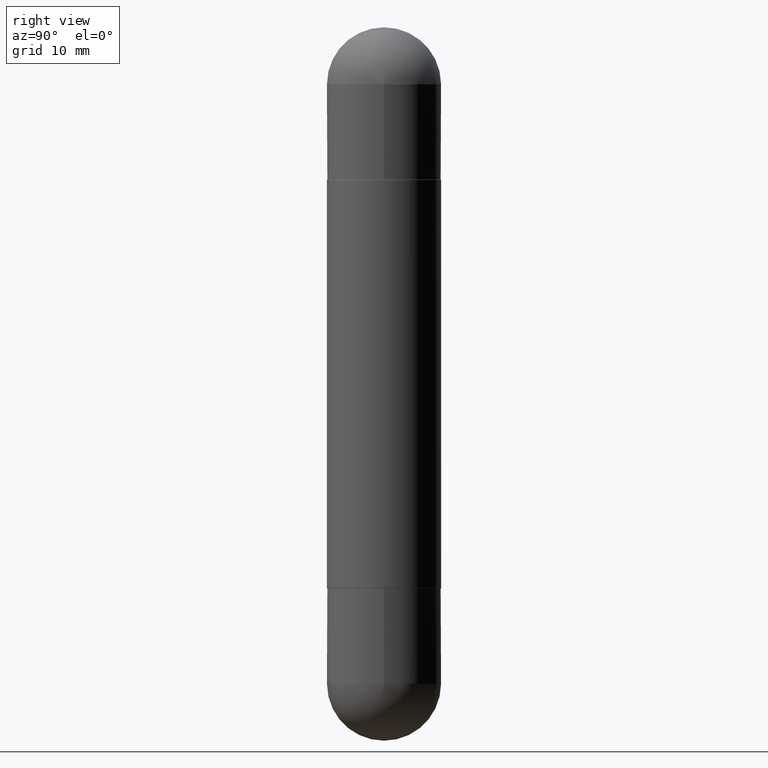
[diagram: clean part render]
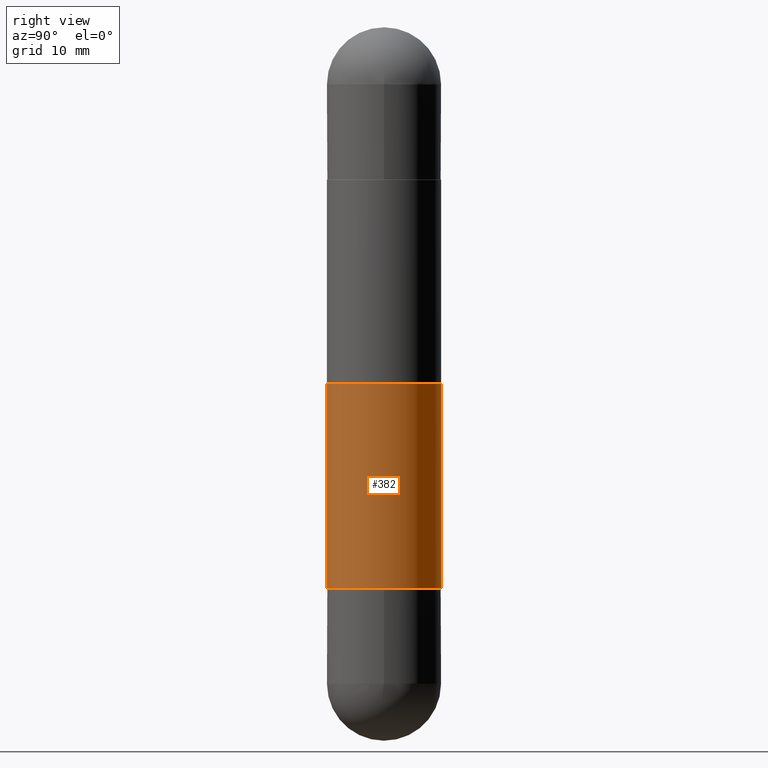
[diagram: same view with one face highlighted and labeled with its STEP entity id]
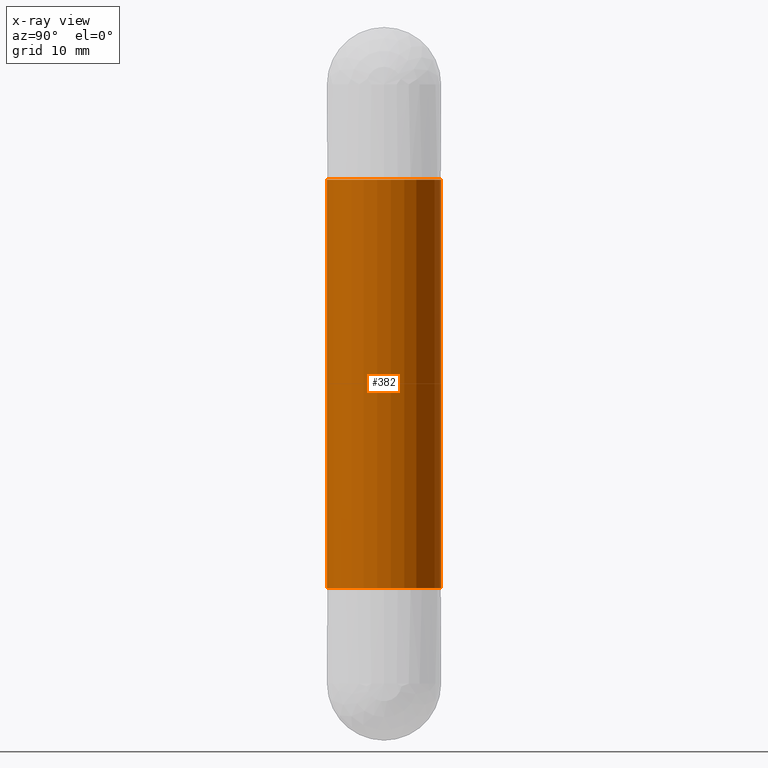
[diagram: x-ray of the same camera — body ghosted, the highlighted face saturated]
A machine part, right view. The second image highlights one B-rep face of the part: STEP entity #382.
The next image is the same camera in x-ray: the body ghosted, the highlighted face saturated — about 0% of this face is hidden behind the body in this view.
In plain terms, the highlighted cylindrical surface (partial cylindrical patch) has radius 5.9995 mm, axis along (-0, 0, -1).
Its self-contained STEP definition (entity closure, byte-faithful):
#5 = DIRECTION ( 'NONE',  ( -6.982962677686265922E-15, -1.000000000000000000, -3.469747663417773058E-15 ) ) ;
#20 = CIRCLE ( 'NONE', #138, 0.2362000000000002709 ) ;
#34 = VERTEX_POINT ( 'NONE', #613 ) ;
#40 = DIRECTION ( 'NONE',  ( -2.446269011737253115E-29, 3.490335398947642466E-15, -1.000000000000000000 ) ) ;
#54 = CARTESIAN_POINT ( 'NONE',  ( -1.649375784469441108E-15, -0.2362000000000083755, -2.321899999999998965 ) ) ;
#138 = AXIS2_PLACEMENT_3D ( 'NONE', #325, #818, #5 ) ;
#140 = DIRECTION ( 'NONE',  ( -2.446269011737253115E-29, 3.490335398947642466E-15, -1.000000000000000000 ) ) ;
#150 = VECTOR ( 'NONE', #140, 39.37007874015748143 ) ;
#168 = AXIS2_PLACEMENT_3D ( 'NONE', #205, #646, #715 ) ;
#180 = EDGE_CURVE ( 'NONE', #34, #221, #20, .T. ) ;
#202 = EDGE_CURVE ( 'NONE', #652, #739, #758, .T. ) ;
#205 = CARTESIAN_POINT ( 'NONE',  ( 0.000000000000000000, 0.000000000000000000, -2.952799999999999869 ) ) ;
#210 = FACE_OUTER_BOUND ( 'NONE', #296, .T. ) ;
#221 = VERTEX_POINT ( 'NONE', #319 ) ;
#296 = EDGE_LOOP ( 'NONE', ( #772, #647, #730, #344 ) ) ;
#319 = CARTESIAN_POINT ( 'NONE',  ( 1.620449627073694243E-15, 0.2361999999999921662, -0.6308999999999992392 ) ) ;
#325 = CARTESIAN_POINT ( 'NONE',  ( 5.679992018352727461E-29, -8.104209762816530877E-15, -0.6309000000000001274 ) ) ;
#344 = ORIENTED_EDGE ( 'NONE', *, *, #202, .T. ) ;
#381 = CARTESIAN_POINT ( 'NONE',  ( 5.679992018352727461E-29, -8.104209762816530877E-15, -2.321899999999999409 ) ) ;
#382 = ADVANCED_FACE ( 'NONE', ( #210 ), #768, .T. ) ;
#437 = CARTESIAN_POINT ( 'NONE',  ( 1.620449627073673141E-15, 0.2361999999999922217, -2.321900000000000297 ) ) ;
#443 = AXIS2_PLACEMENT_3D ( 'NONE', #381, #632, #635 ) ;
#486 = LINE ( 'NONE', #744, #587 ) ;
#506 = EDGE_CURVE ( 'NONE', #34, #652, #522, .T. ) ;
#522 = LINE ( 'NONE', #591, #150 ) ;
#587 = VECTOR ( 'NONE', #40, 39.37007874015748143 ) ;
#591 = CARTESIAN_POINT ( 'NONE',  ( -1.649375784469497117E-15, -0.2362000000000001598, -2.952800000000000757 ) ) ;
#613 = CARTESIAN_POINT ( 'NONE',  ( -1.649375784469441108E-15, -0.2362000000000083755, -0.6309000000000009045 ) ) ;
#619 = EDGE_CURVE ( 'NONE', #221, #739, #486, .T. ) ;
#632 = DIRECTION ( 'NONE',  ( -2.446269011737253396E-29, 3.490335398947642861E-15, 1.000000000000000000 ) ) ;
#635 = DIRECTION ( 'NONE',  ( -6.982962677686265922E-15, -1.000000000000000000, 3.469747663417773058E-15 ) ) ;
#646 = DIRECTION ( 'NONE',  ( -2.446269011737253396E-29, 3.490335398947642861E-15, -1.000000000000000000 ) ) ;
#647 = ORIENTED_EDGE ( 'NONE', *, *, #180, .F. ) ;
#652 = VERTEX_POINT ( 'NONE', #54 ) ;
#715 = DIRECTION ( 'NONE',  ( -6.982962677686265922E-15, -1.000000000000000000, -4.626330217890366181E-15 ) ) ;
#730 = ORIENTED_EDGE ( 'NONE', *, *, #506, .T. ) ;
#739 = VERTEX_POINT ( 'NONE', #437 ) ;
#744 = CARTESIAN_POINT ( 'NONE',  ( 1.620449627073636656E-15, 0.2362000000000001598, -2.952799999999998537 ) ) ;
#758 = CIRCLE ( 'NONE', #443, 0.2362000000000002709 ) ;
#768 = CYLINDRICAL_SURFACE ( 'NONE', #168, 0.2362000000000001598 ) ;
#772 = ORIENTED_EDGE ( 'NONE', *, *, #619, .F. ) ;
#818 = DIRECTION ( 'NONE',  ( 2.446269011737253396E-29, -3.490335398947642861E-15, 1.000000000000000000 ) ) ;